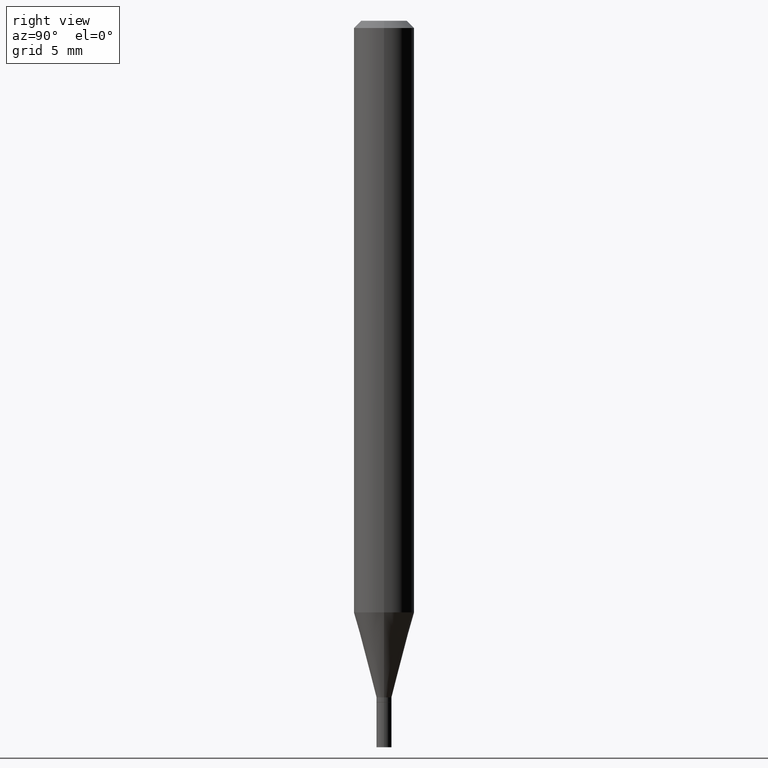
[diagram: clean part render]
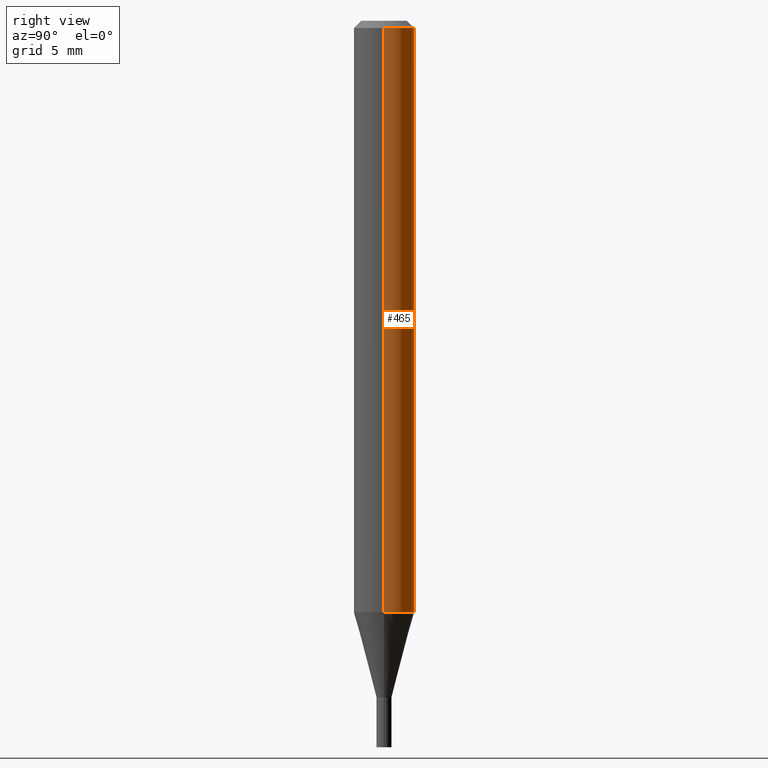
[diagram: same view with one face highlighted and labeled with its STEP entity id]
A machine part, right view. The second image highlights one B-rep face of the part: STEP entity #465.
In plain terms, the highlighted cylindrical surface (edge-blend (fillet) strip) has radius 1.5875 mm, axis along (-0, 0, 1).
Its self-contained STEP definition (entity closure, byte-faithful):
#3 = EDGE_CURVE ( 'NONE', #184, #27, #83, .T. ) ;
#5 = VECTOR ( 'NONE', #39, 39.37007874015748143 ) ;
#22 = EDGE_LOOP ( 'NONE', ( #314, #104, #66, #317 ) ) ;
#27 = VERTEX_POINT ( 'NONE', #125 ) ;
#33 = CARTESIAN_POINT ( 'NONE',  ( -0.06250000000000000000, 4.440892098500626162E-16, -3.074334431409316114E-30 ) ) ;
#34 = CARTESIAN_POINT ( 'NONE',  ( 2.987369072089272424E-29, -4.265171300102537329E-15, -1.221593612044262978 ) ) ;
#39 = DIRECTION ( 'NONE',  ( -2.445468806185136877E-29, 3.491481338843145188E-15, 1.000000000000000000 ) ) ;
#50 = DIRECTION ( 'NONE',  ( 1.000000000000000000, -6.982962677686270655E-15, 0.000000000000000000 ) ) ;
#66 = ORIENTED_EDGE ( 'NONE', *, *, #428, .F. ) ;
#77 = DIRECTION ( 'NONE',  ( -2.445468806185136597E-29, 3.491481338843145583E-15, 1.000000000000000000 ) ) ;
#78 = LINE ( 'NONE', #33, #5 ) ;
#83 = CIRCLE ( 'NONE', #340, 0.06250000000000000000 ) ;
#86 = CYLINDRICAL_SURFACE ( 'NONE', #299, 0.06250000000000000000 ) ;
#95 = VERTEX_POINT ( 'NONE', #451 ) ;
#104 = ORIENTED_EDGE ( 'NONE', *, *, #342, .T. ) ;
#118 = CARTESIAN_POINT ( 'NONE',  ( 0.000000000000000000, 0.000000000000000000, 0.000000000000000000 ) ) ;
#125 = CARTESIAN_POINT ( 'NONE',  ( -0.06250000000000000000, -3.821082090252475502E-15, -1.221593612044262978 ) ) ;
#147 = AXIS2_PLACEMENT_3D ( 'NONE', #438, #411, #266 ) ;
#160 = FACE_OUTER_BOUND ( 'NONE', #22, .T. ) ;
#183 = LINE ( 'NONE', #251, #404 ) ;
#184 = VERTEX_POINT ( 'NONE', #275 ) ;
#224 = DIRECTION ( 'NONE',  ( 1.000000000000000000, -6.982962677686266711E-15, 4.876176775795935793E-29 ) ) ;
#249 = VERTEX_POINT ( 'NONE', #440 ) ;
#251 = CARTESIAN_POINT ( 'NONE',  ( 0.06250000000000000000, -4.364351673553916694E-16, 3.047610484872459871E-30 ) ) ;
#266 = DIRECTION ( 'NONE',  ( 1.000000000000000000, -6.982962677686266711E-15, 0.000000000000000000 ) ) ;
#275 = CARTESIAN_POINT ( 'NONE',  ( 0.06250000000000000000, -4.701606467457928999E-15, -1.221593612044262978 ) ) ;
#299 = AXIS2_PLACEMENT_3D ( 'NONE', #118, #443, #224 ) ;
#314 = ORIENTED_EDGE ( 'NONE', *, *, #3, .T. ) ;
#317 = ORIENTED_EDGE ( 'NONE', *, *, #332, .F. ) ;
#332 = EDGE_CURVE ( 'NONE', #184, #249, #183, .T. ) ;
#340 = AXIS2_PLACEMENT_3D ( 'NONE', #34, #77, #50 ) ;
#342 = EDGE_CURVE ( 'NONE', #27, #95, #78, .T. ) ;
#362 = DIRECTION ( 'NONE',  ( -2.445468806185136877E-29, 3.491481338843145188E-15, 1.000000000000000000 ) ) ;
#368 = CIRCLE ( 'NONE', #147, 0.06250000000000000000 ) ;
#404 = VECTOR ( 'NONE', #362, 39.37007874015748143 ) ;
#411 = DIRECTION ( 'NONE',  ( -2.445468806185136597E-29, 3.491481338843145583E-15, 1.000000000000000000 ) ) ;
#428 = EDGE_CURVE ( 'NONE', #249, #95, #368, .T. ) ;
#438 = CARTESIAN_POINT ( 'NONE',  ( 3.668203209277705088E-31, -5.237222008264718399E-17, -0.01499999999999999944 ) ) ;
#440 = CARTESIAN_POINT ( 'NONE',  ( 0.06250000000000000000, -4.888073874380388472E-16, -0.01499999999999999944 ) ) ;
#443 = DIRECTION ( 'NONE',  ( -2.445468806185136597E-29, 3.491481338843145583E-15, 1.000000000000000000 ) ) ;
#451 = CARTESIAN_POINT ( 'NONE',  ( -0.06250000000000000000, -1.714682550242529785E-15, -0.01499999999999999944 ) ) ;
#465 = ADVANCED_FACE ( 'NONE', ( #160 ), #86, .T. ) ;